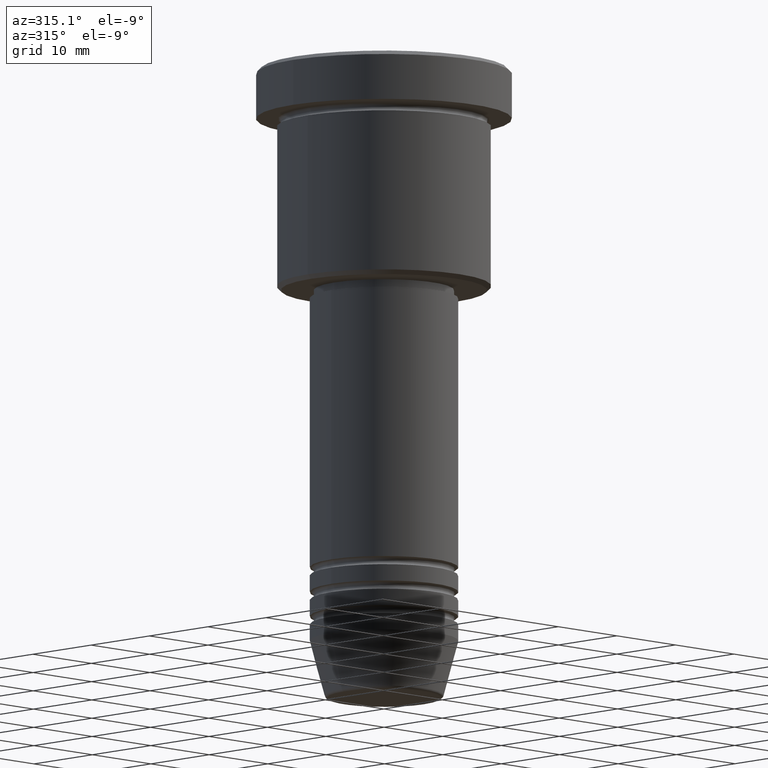
[diagram: clean part render]
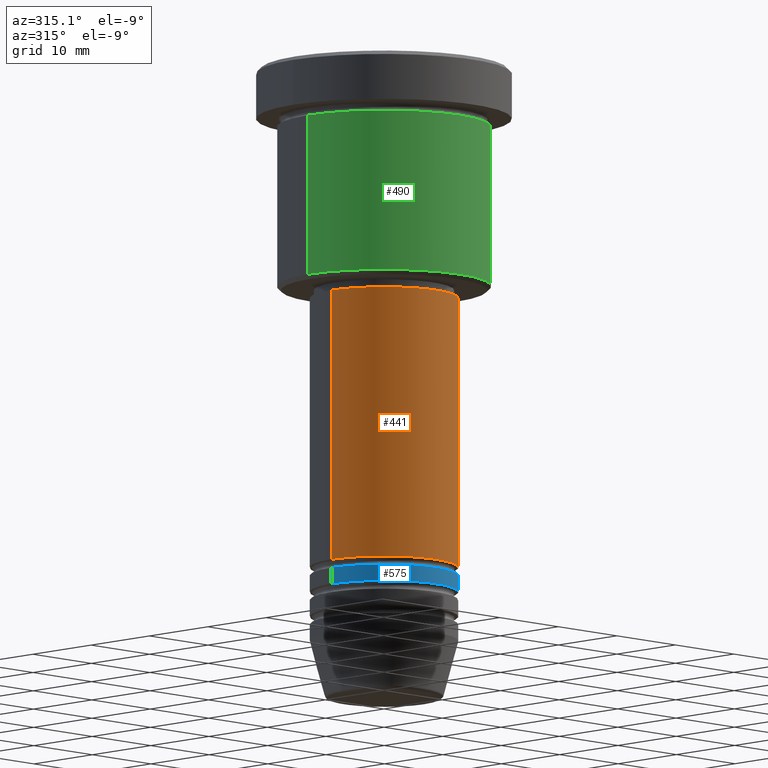
[diagram: same view with three faces highlighted in distinct colors, each labeled with its STEP entity id]
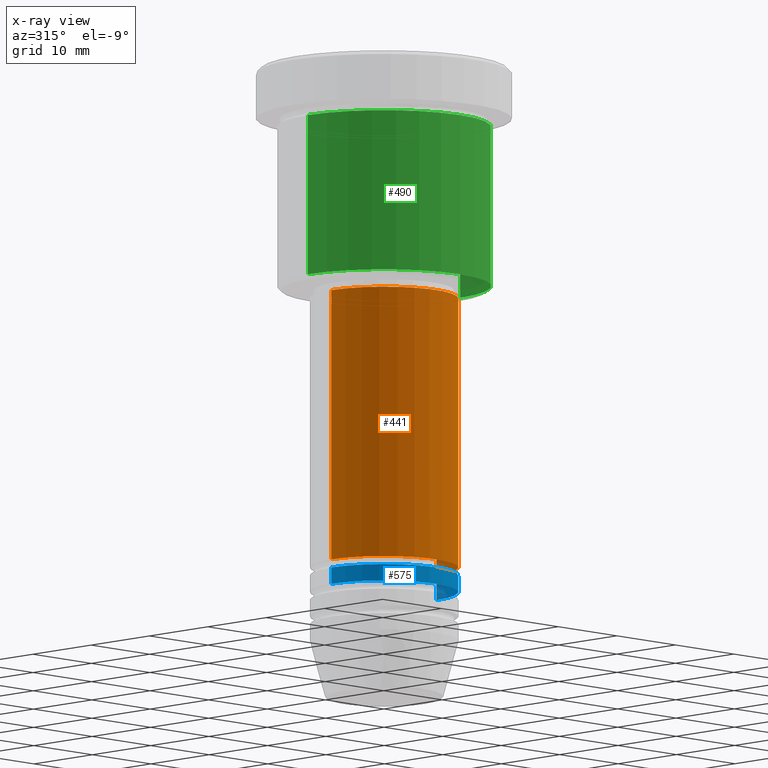
[diagram: x-ray of the same camera — body ghosted, the three highlighted faces saturated]
A machine part, auxiliary view with three faces highlighted in distinct colors.
The next image is the same camera in x-ray (body ghosted, the three faces saturated) — at least one of them is partly hidden behind the body in this view.
Their STEP definitions:

[orange] entity #441 — the highlighted cylindrical surface (partial cylindrical patch) has radius 9 mm, axis along (-0, -0, 1).
#12 = CARTESIAN_POINT ( 'NONE',  ( -9.000000000000000000, 1.102182119232617714E-15, -60.99999999999998579 ) ) ;
#23 = EDGE_LOOP ( 'NONE', ( #260, #357, #674, #325 ) ) ;
#122 = VERTEX_POINT ( 'NONE', #204 ) ;
#204 = CARTESIAN_POINT ( 'NONE',  ( 9.000000000000000000, 0.000000000000000000, -28.00000000000000711 ) ) ;
#206 = VECTOR ( 'NONE', #796, 1000.000000000000000 ) ;
#260 = ORIENTED_EDGE ( 'NONE', *, *, #316, .F. ) ;
#316 = EDGE_CURVE ( 'NONE', #415, #869, #618, .T. ) ;
#322 = LINE ( 'NONE', #1158, #206 ) ;
#325 = ORIENTED_EDGE ( 'NONE', *, *, #930, .F. ) ;
#357 = ORIENTED_EDGE ( 'NONE', *, *, #419, .T. ) ;
#359 = CARTESIAN_POINT ( 'NONE',  ( 0.000000000000000000, 0.000000000000000000, 0.000000000000000000 ) ) ;
#415 = VERTEX_POINT ( 'NONE', #12 ) ;
#419 = EDGE_CURVE ( 'NONE', #415, #1154, #1134, .T. ) ;
#441 = ADVANCED_FACE ( 'NONE', ( #727 ), #738, .T. ) ;
#449 = DIRECTION ( 'NONE',  ( 1.000000000000000000, 0.000000000000000000, 0.000000000000000000 ) ) ;
#450 = AXIS2_PLACEMENT_3D ( 'NONE', #359, #456, #1099 ) ;
#455 = CARTESIAN_POINT ( 'NONE',  ( -9.000000000000000000, 1.102182119232617714E-15, -28.00000000000000711 ) ) ;
#456 = DIRECTION ( 'NONE',  ( -0.000000000000000000, -0.000000000000000000, 1.000000000000000000 ) ) ;
#465 = DIRECTION ( 'NONE',  ( 1.000000000000000000, 0.000000000000000000, 0.000000000000000000 ) ) ;
#502 = CARTESIAN_POINT ( 'NONE',  ( 9.000000000000000000, 0.000000000000000000, -60.99999999999998579 ) ) ;
#505 = DIRECTION ( 'NONE',  ( -0.000000000000000000, -0.000000000000000000, 1.000000000000000000 ) ) ;
#547 = DIRECTION ( 'NONE',  ( -0.000000000000000000, -0.000000000000000000, 1.000000000000000000 ) ) ;
#618 = LINE ( 'NONE', #979, #807 ) ;
#674 = ORIENTED_EDGE ( 'NONE', *, *, #777, .T. ) ;
#727 = FACE_OUTER_BOUND ( 'NONE', #23, .T. ) ;
#732 = CARTESIAN_POINT ( 'NONE',  ( 0.000000000000000000, 0.000000000000000000, -60.99999999999998579 ) ) ;
#733 = AXIS2_PLACEMENT_3D ( 'NONE', #732, #547, #449 ) ;
#738 = CYLINDRICAL_SURFACE ( 'NONE', #450, 9.000000000000000000 ) ;
#777 = EDGE_CURVE ( 'NONE', #1154, #122, #322, .T. ) ;
#788 = CIRCLE ( 'NONE', #940, 9.000000000000000000 ) ;
#796 = DIRECTION ( 'NONE',  ( -0.000000000000000000, -0.000000000000000000, 1.000000000000000000 ) ) ;
#807 = VECTOR ( 'NONE', #505, 1000.000000000000000 ) ;
#869 = VERTEX_POINT ( 'NONE', #455 ) ;
#884 = CARTESIAN_POINT ( 'NONE',  ( 0.000000000000000000, 0.000000000000000000, -28.00000000000000711 ) ) ;
#930 = EDGE_CURVE ( 'NONE', #869, #122, #788, .T. ) ;
#940 = AXIS2_PLACEMENT_3D ( 'NONE', #884, #1183, #465 ) ;
#979 = CARTESIAN_POINT ( 'NONE',  ( -9.000000000000000000, 1.102182119232617714E-15, 0.000000000000000000 ) ) ;
#1099 = DIRECTION ( 'NONE',  ( 1.000000000000000000, 0.000000000000000000, 0.000000000000000000 ) ) ;
#1134 = CIRCLE ( 'NONE', #733, 9.000000000000000000 ) ;
#1154 = VERTEX_POINT ( 'NONE', #502 ) ;
#1158 = CARTESIAN_POINT ( 'NONE',  ( 9.000000000000000000, 0.000000000000000000, 0.000000000000000000 ) ) ;
#1183 = DIRECTION ( 'NONE',  ( -0.000000000000000000, -0.000000000000000000, 1.000000000000000000 ) ) ;

[blue] entity #575 — the highlighted cylindrical surface (partial cylindrical patch) has radius 9 mm, axis along (-0, -0, 1).
#34 = AXIS2_PLACEMENT_3D ( 'NONE', #1039, #924, #222 ) ;
#43 = CARTESIAN_POINT ( 'NONE',  ( -9.000000000000000000, 1.102182119232617714E-15, 0.000000000000000000 ) ) ;
#105 = VECTOR ( 'NONE', #477, 1000.000000000000000 ) ;
#117 = VERTEX_POINT ( 'NONE', #317 ) ;
#155 = VERTEX_POINT ( 'NONE', #649 ) ;
#166 = AXIS2_PLACEMENT_3D ( 'NONE', #985, #374, #175 ) ;
#175 = DIRECTION ( 'NONE',  ( 1.000000000000000000, 0.000000000000000000, 0.000000000000000000 ) ) ;
#207 = CARTESIAN_POINT ( 'NONE',  ( 9.000000000000000000, 0.000000000000000000, 0.000000000000000000 ) ) ;
#211 = EDGE_CURVE ( 'NONE', #1102, #117, #272, .T. ) ;
#222 = DIRECTION ( 'NONE',  ( 1.000000000000000000, 0.000000000000000000, 0.000000000000000000 ) ) ;
#272 = CIRCLE ( 'NONE', #856, 9.000000000000000000 ) ;
#291 = LINE ( 'NONE', #207, #105 ) ;
#317 = CARTESIAN_POINT ( 'NONE',  ( 9.000000000000000000, 0.000000000000000000, -61.99999999999998579 ) ) ;
#319 = VERTEX_POINT ( 'NONE', #864 ) ;
#374 = DIRECTION ( 'NONE',  ( -0.000000000000000000, -0.000000000000000000, 1.000000000000000000 ) ) ;
#406 = ORIENTED_EDGE ( 'NONE', *, *, #211, .F. ) ;
#412 = DIRECTION ( 'NONE',  ( 1.000000000000000000, 0.000000000000000000, 0.000000000000000000 ) ) ;
#477 = DIRECTION ( 'NONE',  ( -0.000000000000000000, -0.000000000000000000, 1.000000000000000000 ) ) ;
#499 = CARTESIAN_POINT ( 'NONE',  ( 0.000000000000000000, 0.000000000000000000, -61.99999999999998579 ) ) ;
#532 = CIRCLE ( 'NONE', #166, 9.000000000000000000 ) ;
#575 = ADVANCED_FACE ( 'NONE', ( #580 ), #852, .T. ) ;
#580 = FACE_OUTER_BOUND ( 'NONE', #1021, .T. ) ;
#649 = CARTESIAN_POINT ( 'NONE',  ( -9.000000000000000000, 1.102182119232617714E-15, -63.99999999999998579 ) ) ;
#662 = CARTESIAN_POINT ( 'NONE',  ( -9.000000000000000000, 1.102182119232617714E-15, -61.99999999999998579 ) ) ;
#686 = EDGE_CURVE ( 'NONE', #155, #1102, #958, .T. ) ;
#752 = ORIENTED_EDGE ( 'NONE', *, *, #854, .T. ) ;
#818 = ORIENTED_EDGE ( 'NONE', *, *, #686, .F. ) ;
#852 = CYLINDRICAL_SURFACE ( 'NONE', #34, 9.000000000000000000 ) ;
#854 = EDGE_CURVE ( 'NONE', #155, #319, #532, .T. ) ;
#856 = AXIS2_PLACEMENT_3D ( 'NONE', #499, #858, #412 ) ;
#858 = DIRECTION ( 'NONE',  ( -0.000000000000000000, -0.000000000000000000, 1.000000000000000000 ) ) ;
#864 = CARTESIAN_POINT ( 'NONE',  ( 9.000000000000000000, 0.000000000000000000, -63.99999999999998579 ) ) ;
#883 = ORIENTED_EDGE ( 'NONE', *, *, #1125, .T. ) ;
#924 = DIRECTION ( 'NONE',  ( -0.000000000000000000, -0.000000000000000000, 1.000000000000000000 ) ) ;
#958 = LINE ( 'NONE', #43, #1181 ) ;
#985 = CARTESIAN_POINT ( 'NONE',  ( 0.000000000000000000, 0.000000000000000000, -63.99999999999998579 ) ) ;
#1021 = EDGE_LOOP ( 'NONE', ( #818, #752, #883, #406 ) ) ;
#1039 = CARTESIAN_POINT ( 'NONE',  ( 0.000000000000000000, 0.000000000000000000, 0.000000000000000000 ) ) ;
#1060 = DIRECTION ( 'NONE',  ( -0.000000000000000000, -0.000000000000000000, 1.000000000000000000 ) ) ;
#1102 = VERTEX_POINT ( 'NONE', #662 ) ;
#1125 = EDGE_CURVE ( 'NONE', #319, #117, #291, .T. ) ;
#1181 = VECTOR ( 'NONE', #1060, 1000.000000000000000 ) ;

[green] entity #490 — the highlighted cylindrical surface (partial cylindrical patch) has radius 13 mm, axis along (-0, -0, 1).
#20 = EDGE_CURVE ( 'NONE', #1180, #668, #711, .T. ) ;
#73 = EDGE_CURVE ( 'NONE', #384, #1180, #697, .T. ) ;
#81 = DIRECTION ( 'NONE',  ( -0.000000000000000000, -0.000000000000000000, 1.000000000000000000 ) ) ;
#83 = DIRECTION ( 'NONE',  ( -1.000000000000000000, 0.000000000000000000, 0.000000000000000000 ) ) ;
#92 = DIRECTION ( 'NONE',  ( -0.000000000000000000, -0.000000000000000000, 1.000000000000000000 ) ) ;
#113 = VERTEX_POINT ( 'NONE', #1133 ) ;
#160 = CARTESIAN_POINT ( 'NONE',  ( 13.00000000000000000, 0.000000000000000000, 0.000000000000000000 ) ) ;
#171 = CARTESIAN_POINT ( 'NONE',  ( 0.000000000000000000, 0.000000000000000000, 0.000000000000000000 ) ) ;
#181 = CARTESIAN_POINT ( 'NONE',  ( 0.000000000000000000, 0.000000000000000000, -6.999999999999995559 ) ) ;
#183 = AXIS2_PLACEMENT_3D ( 'NONE', #534, #269, #83 ) ;
#223 = AXIS2_PLACEMENT_3D ( 'NONE', #181, #92, #271 ) ;
#237 = AXIS2_PLACEMENT_3D ( 'NONE', #171, #81, #1179 ) ;
#254 = CARTESIAN_POINT ( 'NONE',  ( 13.00000000000000000, 0.000000000000000000, -6.999999999999995559 ) ) ;
#269 = DIRECTION ( 'NONE',  ( -0.000000000000000000, -0.000000000000000000, 1.000000000000000000 ) ) ;
#271 = DIRECTION ( 'NONE',  ( 1.000000000000000000, 0.000000000000000000, 0.000000000000000000 ) ) ;
#364 = LINE ( 'NONE', #1088, #765 ) ;
#384 = VERTEX_POINT ( 'NONE', #626 ) ;
#393 = EDGE_CURVE ( 'NONE', #384, #113, #364, .T. ) ;
#413 = VECTOR ( 'NONE', #1076, 1000.000000000000000 ) ;
#446 = ORIENTED_EDGE ( 'NONE', *, *, #73, .T. ) ;
#490 = ADVANCED_FACE ( 'NONE', ( #721 ), #808, .T. ) ;
#534 = CARTESIAN_POINT ( 'NONE',  ( 0.000000000000000000, 0.000000000000000000, -26.49999999999998934 ) ) ;
#537 = EDGE_LOOP ( 'NONE', ( #694, #446, #795, #915 ) ) ;
#581 = CIRCLE ( 'NONE', #223, 13.00000000000000000 ) ;
#590 = CARTESIAN_POINT ( 'NONE',  ( 13.00000000000000000, 0.000000000000000000, -26.49999999999998934 ) ) ;
#626 = CARTESIAN_POINT ( 'NONE',  ( -13.00000000000000000, 1.592040838891559095E-15, -26.49999999999998934 ) ) ;
#668 = VERTEX_POINT ( 'NONE', #254 ) ;
#694 = ORIENTED_EDGE ( 'NONE', *, *, #393, .F. ) ;
#697 = CIRCLE ( 'NONE', #183, 13.00000000000000000 ) ;
#711 = LINE ( 'NONE', #160, #413 ) ;
#721 = FACE_OUTER_BOUND ( 'NONE', #537, .T. ) ;
#765 = VECTOR ( 'NONE', #826, 1000.000000000000000 ) ;
#795 = ORIENTED_EDGE ( 'NONE', *, *, #20, .T. ) ;
#808 = CYLINDRICAL_SURFACE ( 'NONE', #237, 13.00000000000000000 ) ;
#826 = DIRECTION ( 'NONE',  ( -0.000000000000000000, -0.000000000000000000, 1.000000000000000000 ) ) ;
#891 = EDGE_CURVE ( 'NONE', #113, #668, #581, .T. ) ;
#915 = ORIENTED_EDGE ( 'NONE', *, *, #891, .F. ) ;
#1076 = DIRECTION ( 'NONE',  ( -0.000000000000000000, -0.000000000000000000, 1.000000000000000000 ) ) ;
#1088 = CARTESIAN_POINT ( 'NONE',  ( -13.00000000000000000, 1.592040838891559095E-15, 0.000000000000000000 ) ) ;
#1133 = CARTESIAN_POINT ( 'NONE',  ( -13.00000000000000000, 1.592040838891559095E-15, -6.999999999999995559 ) ) ;
#1179 = DIRECTION ( 'NONE',  ( 1.000000000000000000, 0.000000000000000000, 0.000000000000000000 ) ) ;
#1180 = VERTEX_POINT ( 'NONE', #590 ) ;